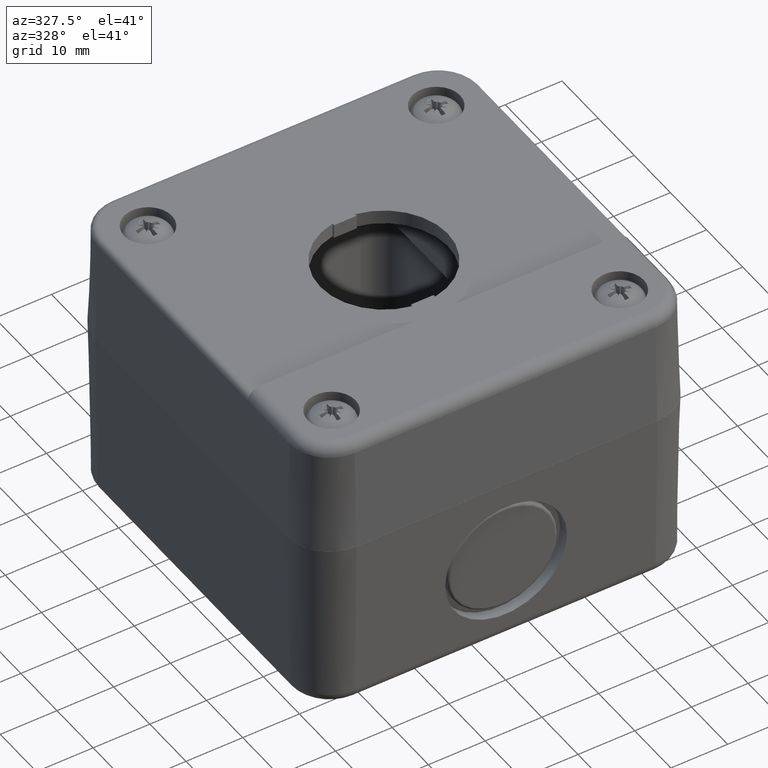
[diagram: clean part render]
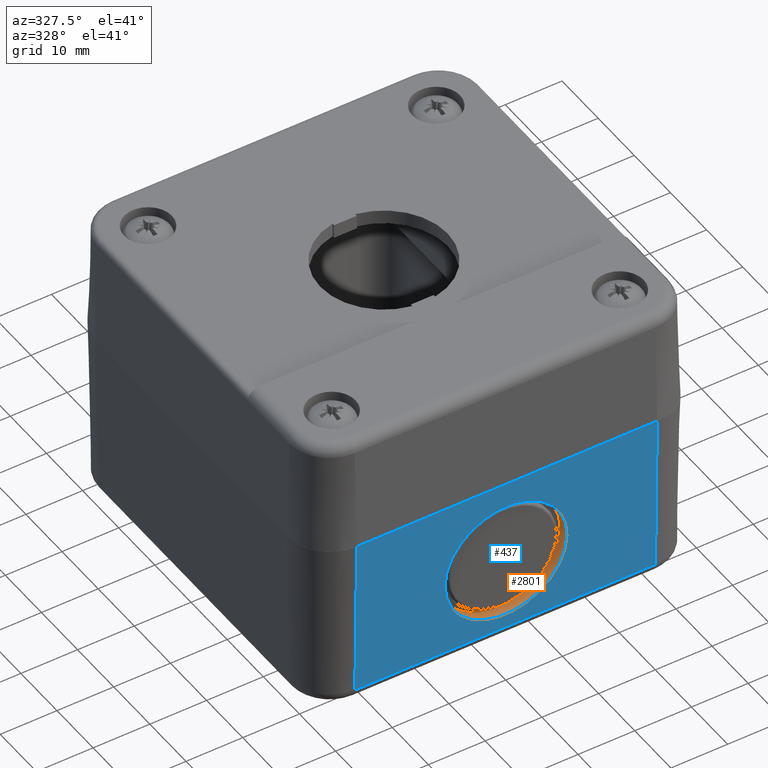
[diagram: same view with the hole feature highlighted: cylindrical wall and planar end face, labeled with their STEP entity ids]
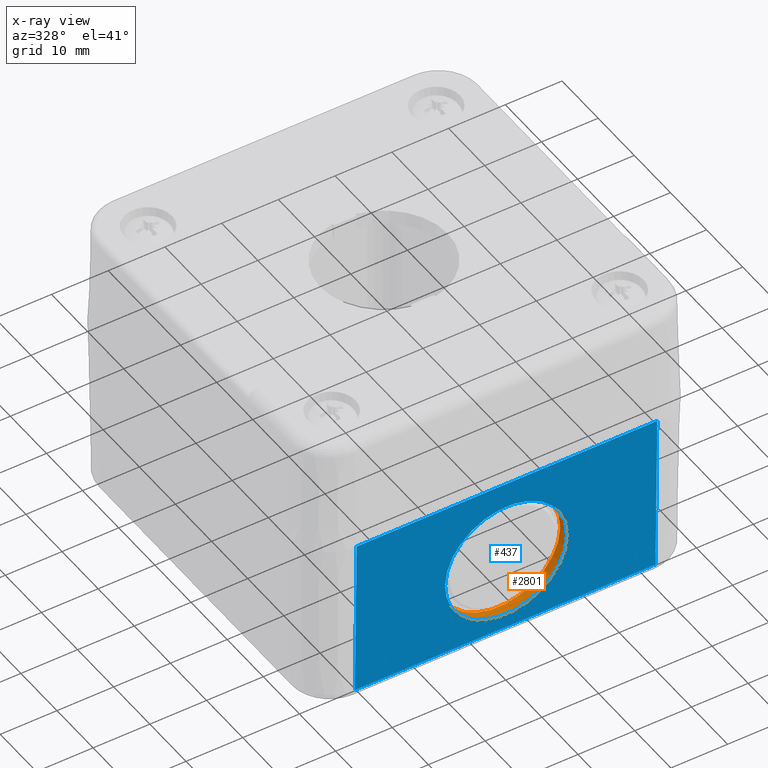
[diagram: x-ray of the same camera — body ghosted, the hole faces saturated]
A machine part, auxiliary view. The highlighted faces form one hole feature of diameter 21.5 mm: the cylindrical wall (entity #2801, orange) and its adjacent planar end face (entity #437, blue) — they share a circular edge in the B-rep.
The next image is the same camera in x-ray (body ghosted, the hole faces saturated) — the bore reads through the body.
Wall:
#426=CARTESIAN_POINT('',(-5.122549297178500,-23.594630346042941,15.300169355130677));
#427=VERTEX_POINT('',#426);
#428=CARTESIAN_POINT('',(-15.872549297178500,-23.594630346042948,15.300169355130675));
#429=DIRECTION('',(0.0,0.999847695156391,0.017452406437283));
#430=DIRECTION('',(-1.0,0.0,0.0));
#431=AXIS2_PLACEMENT_3D('',#428,#429,#430);
#432=CIRCLE('',#431,10.750000000000000);
#433=EDGE_CURVE('',#427,#427,#432,.T.);
#2782=CARTESIAN_POINT('',(-15.872549297178500,-23.594630346042944,15.300169355130675));
#2783=DIRECTION('',(-5.843279E-016,0.999847695156391,0.017452406437284));
#2784=DIRECTION('',(-1.0,0.0,0.0));
#2785=AXIS2_PLACEMENT_3D('',#2782,#2783,#2784);
#2786=CYLINDRICAL_SURFACE('',#2785,10.750000000000000);
#2787=CARTESIAN_POINT('',(-5.122549297178502,-21.694919725245796,15.333328927361515));
#2788=VERTEX_POINT('',#2787);
#2789=CARTESIAN_POINT('',(-15.872549297178500,-21.694919725245803,15.333328927361512));
#2790=DIRECTION('',(0.0,-0.999847695156391,-0.017452406437283));
#2791=DIRECTION('',(-1.0,0.0,0.0));
#2792=AXIS2_PLACEMENT_3D('',#2789,#2790,#2791);
#2793=CIRCLE('',#2792,10.750000000000000);
#2794=EDGE_CURVE('',#2788,#2788,#2793,.T.);
#2795=ORIENTED_EDGE('',*,*,#2794,.F.);
#2796=EDGE_LOOP('',(#2795));
#2797=FACE_OUTER_BOUND('',#2796,.T.);
#2798=ORIENTED_EDGE('',*,*,#433,.F.);
#2799=EDGE_LOOP('',(#2798));
#2800=FACE_BOUND('',#2799,.T.);
#2801=ADVANCED_FACE('',(#2797,#2800),#2786,.F.);
End face:
#154=CARTESIAN_POINT('',(10.627450702821495,-23.361865760617803,1.965095187125425));
#155=VERTEX_POINT('',#154);
#222=CARTESIAN_POINT('',(-42.372549297178494,-23.361865760617832,1.965095187125433));
#223=VERTEX_POINT('',#222);
#240=CARTESIAN_POINT('',(10.627450702821495,-23.361865760617803,1.965095187125425));
#241=DIRECTION('',(-1.0,0.0,0.0));
#242=VECTOR('',#241,52.999999999999986);
#243=LINE('',#240,#242);
#244=EDGE_CURVE('',#155,#223,#243,.T.);
#377=CARTESIAN_POINT('',(-42.372549297178494,-23.861689883339888,30.600000000000005));
#378=VERTEX_POINT('',#377);
#379=CARTESIAN_POINT('',(-42.372549297178494,-23.361865760617832,1.965095187125433));
#380=DIRECTION('',(0.0,-0.017452406437284,0.999847695156391));
#381=VECTOR('',#380,28.639266711912203);
#382=LINE('',#379,#381);
#383=EDGE_CURVE('',#223,#378,#382,.T.);
#403=CARTESIAN_POINT('',(10.627450702821495,-23.327564896536401,0.0));
#404=DIRECTION('',(5.026659E-016,-0.999847695156391,-0.017452406437283));
#405=DIRECTION('',(1.0,0.0,0.0));
#406=AXIS2_PLACEMENT_3D('',#403,#404,#405);
#407=PLANE('',#406);
#408=ORIENTED_EDGE('',*,*,#244,.F.);
#409=CARTESIAN_POINT('',(10.627450702821495,-23.861689883339857,30.600000000000005));
#410=VERTEX_POINT('',#409);
#411=CARTESIAN_POINT('',(10.627450702821495,-23.361865760617803,1.965095187125425));
#412=DIRECTION('',(0.0,-0.017452406437283,0.999847695156391));
#413=VECTOR('',#412,28.639266711912207);
#414=LINE('',#411,#413);
#415=EDGE_CURVE('',#155,#410,#414,.T.);
#416=ORIENTED_EDGE('',*,*,#415,.T.);
#417=CARTESIAN_POINT('',(10.627450702821495,-23.861689883339857,30.600000000000005));
#418=DIRECTION('',(-1.0,0.0,0.0));
#419=VECTOR('',#418,52.999999999999986);
#420=LINE('',#417,#419);
#421=EDGE_CURVE('',#410,#378,#420,.T.);
#422=ORIENTED_EDGE('',*,*,#421,.T.);
#423=ORIENTED_EDGE('',*,*,#383,.F.);
#424=EDGE_LOOP('',(#408,#416,#422,#423));
#425=FACE_OUTER_BOUND('',#424,.T.);
#426=CARTESIAN_POINT('',(-5.122549297178500,-23.594630346042941,15.300169355130677));
#427=VERTEX_POINT('',#426);
#428=CARTESIAN_POINT('',(-15.872549297178500,-23.594630346042948,15.300169355130675));
#429=DIRECTION('',(0.0,0.999847695156391,0.017452406437283));
#430=DIRECTION('',(-1.0,0.0,0.0));
#431=AXIS2_PLACEMENT_3D('',#428,#429,#430);
#432=CIRCLE('',#431,10.750000000000000);
#433=EDGE_CURVE('',#427,#427,#432,.T.);
#434=ORIENTED_EDGE('',*,*,#433,.T.);
#435=EDGE_LOOP('',(#434));
#436=FACE_BOUND('',#435,.T.);
#437=ADVANCED_FACE('',(#425,#436),#407,.T.);